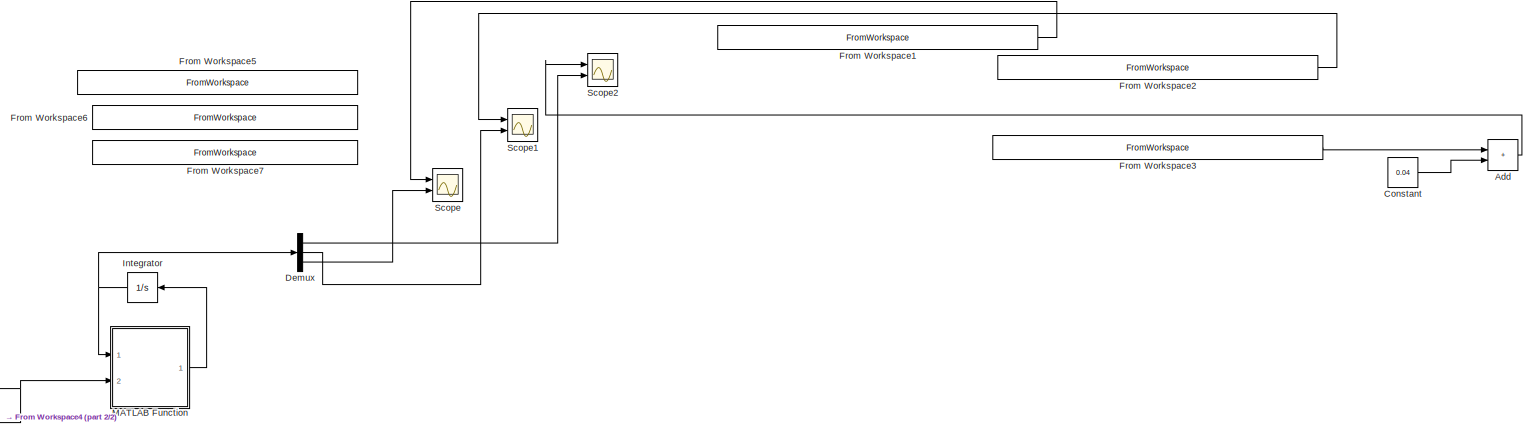
[diagram: root canvas - part 1/2, most of the canvas]
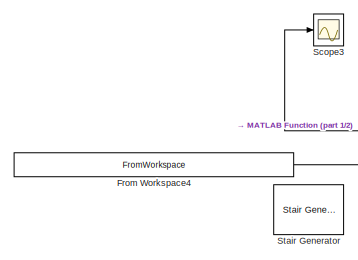
[diagram: root canvas - part 2/2, bottom left region]
MODEL slx_293bfca55cc4
KIND model
CONFIG AbsTol = auto
CONFIG EnableMultiTasking = off
CONFIG FixedStep = auto
CONFIG MaxStep = auto
CONFIG MinStep = auto
CONFIG RelTol = 1e-3
CONFIG SampleTimeConstraint = Unconstrained
CONFIG Solver = VariableStepAuto
CONFIG SolverName = VariableStepAuto
CONFIG StartTime = 0.0
CONFIG StopTime = 30
BLOCK [Sum] Add
  IconShape = rectangular
  Ports = [2, 1]
BLOCK [Constant] Constant
  Value = 0.04
BLOCK [Demux] Demux
  Outputs = 3
  Ports = [1, 3]
BLOCK [FromWorkspace] From Workspace1
  VariableName = [drgania_skok_jednostkowy_0_3.time, drgania_skok_jednostkowy_0_3.signals(5).values]
BLOCK [FromWorkspace] From Workspace2
  VariableName = [drgania_skok_jednostkowy_0_3.time, drgania_skok_jednostkowy_0_3.signals(3).values]
BLOCK [FromWorkspace] From Workspace3
  VariableName = [drgania_skok_jednostkowy_0_3.time, drgania_skok_jednostkowy_0_3.signals(1).values]
BLOCK [FromWorkspace] From Workspace4
  VariableName = [drgania_skok_jednostkowy_0_3.time, drgania_skok_jednostkowy_0_3.signals(7).values]
BLOCK [FromWorkspace] From Workspace5
  VariableName = [walidacja_modelu_nr2.time, walidacja_modelu_nr2.signals(1).values]
BLOCK [FromWorkspace] From Workspace6
  VariableName = [walidacja_modelu_nr2.time, walidacja_modelu_nr2.signals(3).values]
BLOCK [FromWorkspace] From Workspace7
  VariableName = [walidacja_modelu_nr2.time, walidacja_modelu_nr2.signals(5).values]
BLOCK [Integrator] Integrator
  InitialCondition = [0, 0, 0]
  Ports = [1, 1]
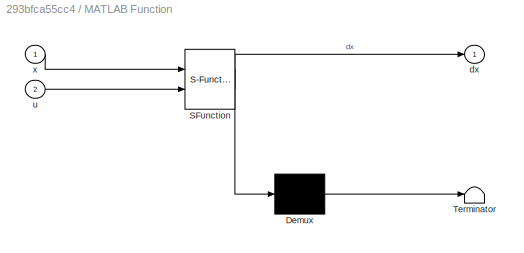
BLOCK [SubSystem] MATLAB Function
  ErrorFcn = Stateflow.Translate.translate
  PermitHierarchicalResolution = ExplicitOnly
  Ports = [2, 1]
  RequestExecContextInheritance = off
  SFBlockType = MATLAB Function
  TreatAsAtomicUnit = on
BLOCK [Demux] MATLAB Function/ Demux 
  Outputs = 1
  Ports = [1, 1]
BLOCK [S-Function] MATLAB Function/ SFunction 
  EnableBusSupport = on
  FunctionName = sf_sfun
  PortCounts = [2 2]
  Ports = [2, 2]
  SFcnIsStateOwnerBlock = off
  SFunctionDeploymentMode = off
  Tag = Stateflow S-Function 2
BLOCK [Terminator] MATLAB Function/ Terminator 
BLOCK [Outport] MATLAB Function/dx
BLOCK [Inport] MATLAB Function/u
  Port = 2
BLOCK [Inport] MATLAB Function/x
BLOCK [Scope] Scope
  Floating = off
  NumInputPorts = 2
  Ports = [2]
  ScopeSpecificationString = Simulink.scopes.TimeScopeBlockCfg('CurrentConfiguration', extmgr.ConfigurationSet(extmgr.Configuration('Core','General UI',true),extmgr.Configuration('Core','Source UI',true),extmgr.Configuration('Sources','WiredSimulink',true),extmgr.Configuration('Visuals','Time Domain',true,'SerializedDisplays',{struct('MinYLimReal','-516.24662','MaxYLimReal','594.14296','YLabelReal','','MinYLimMag',' 0.00000',...<+1408ch>
BLOCK [Scope] Scope1
  Floating = off
  NumInputPorts = 2
  Ports = [2]
  ScopeSpecificationString = Simulink.scopes.TimeScopeBlockCfg('CurrentConfiguration', extmgr.ConfigurationSet(extmgr.Configuration('Core','General UI',true),extmgr.Configuration('Core','Source UI',true),extmgr.Configuration('Sources','WiredSimulink',true,'DataLoggingVariableName','ScopeData1'),extmgr.Configuration('Visuals','Time Domain',true,'SerializedDisplays',{struct('MinYLimReal','-0.45835','MaxYLimReal','0.42958','YLab...<+1437ch>
BLOCK [Scope] Scope2
  Floating = off
  NumInputPorts = 2
  Ports = [2]
  ScopeSpecificationString = Simulink.scopes.TimeScopeBlockCfg('CurrentConfiguration', extmgr.ConfigurationSet(extmgr.Configuration('Core','General UI',true),extmgr.Configuration('Core','Source UI',true),extmgr.Configuration('Sources','WiredSimulink',true,'DataLoggingVariableName','ScopeData2'),extmgr.Configuration('Visuals','Time Domain',true,'SerializedDisplays',{struct('MinYLimReal','-5.74222','MaxYLimReal','49.6578','YLab...<+1445ch>
BLOCK [Scope] Scope3
  Floating = off
  NumInputPorts = 1
  Ports = [1]
  ScopeSpecificationString = Simulink.scopes.TimeScopeBlockCfg('CurrentConfiguration', extmgr.ConfigurationSet(extmgr.Configuration('Core','General UI',true),extmgr.Configuration('Core','Source UI',true),extmgr.Configuration('Sources','WiredSimulink',true,'DataLoggingVariableName','ScopeData3'),extmgr.Configuration('Visuals','Time Domain',true,'SerializedDisplays',{struct('MinYLimReal','-1.25','MaxYLimReal','1.25','YLabelReal...<+1466ch>
BLOCK [Reference] Stair Generator  REF=eeStairGenerator/Stair Generator
  Ports = [0, 1]
  SourceBlock = eeStairGenerator/Stair Generator
  SourceProductBaseCode = PS
  SourceType = Stair Generator
LINE Add:1 -> Scope2:1
LINE Constant:1 -> Add:2
LINE Demux:1 -> Scope2:2
LINE Demux:2 -> Scope1:2
LINE Demux:3 -> Scope:2
LINE From Workspace1:1 -> Scope:1
LINE From Workspace2:1 -> Scope1:1
LINE From Workspace3:1 -> Add:1
NET From Workspace4:1 -> MATLAB Function:2, Scope3:1
NET Integrator:1 -> Demux:1, MATLAB Function:1
LINE MATLAB Function:1 -> Integrator:1
note: NET lines group one-source signal fan-out (src -> all destinations, sorted); 1:1 wires keep LINE
CHART MATLAB Function states=1 transitions=1
  STATE_LABEL 'eML_blk_kernel()'
  STATE_LABEL 'SCRIPT:\n% function dx = fcn(x, u)\n% \n% %dane wyidentyfikowane\n% MgL = 0.1064;\n% g = 9.81;\n% kt = 0.027; % NmA\n% R = 0.4; %Ohmy\n% \n% mi_phi = 0.000082; \n% % mi_phi = 1.566850664740816e-04;\n% % mi_theta = 0.0290; %zostało wyznaczone z drgań swobodnych \n% mi_theta = 0.0290;\n% \n% G = 488.7;\n% J = 0.0283; %kg*m^2\n% \n% %wspołczynnik a:\n% % a = 0.0023;\n% % b = -0.0022;\n% p = [0.002321260244060,-0.0022107...<+1021ch>'
